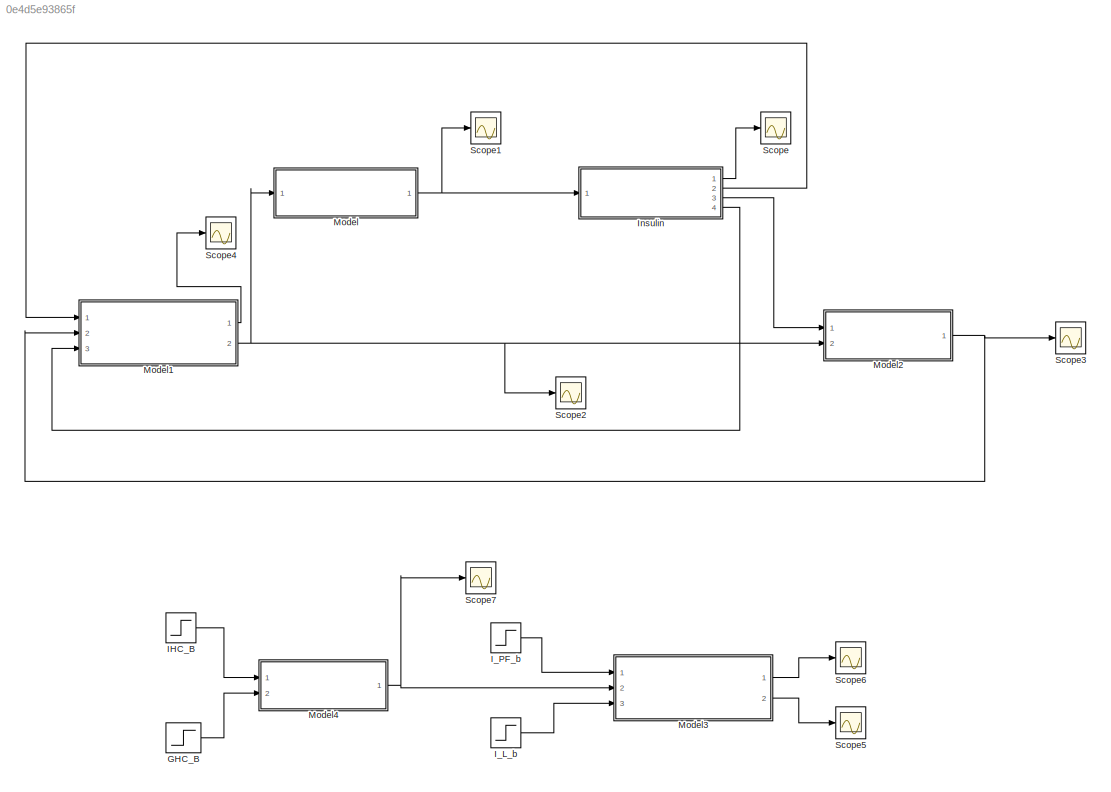
MODEL slx_0e4d5e93865f
KIND model
CONFIG AbsTol = auto
CONFIG EnableMultiTasking = off
CONFIG FixedStep = auto
CONFIG MaxStep = auto
CONFIG MinStep = auto
CONFIG RelTol = 1e-3
CONFIG SampleTimeConstraint = Unconstrained
CONFIG Solver = VariableStepAuto
CONFIG SolverName = VariableStepAuto
CONFIG StartTime = 0.0
CONFIG StopTime = 10
BLOCK [Step] GHC_B
  After = GHC_B
  Commented = on
  SampleTime = 0.1
BLOCK [Step] IHC_B
  After = IHC_B
  Commented = on
  SampleTime = 0.1
BLOCK [Step] I_L_b
  After = ILC_B
  Commented = on
  SampleTime = 0.1
BLOCK [Step] I_PF_b
  After = IPT_B
  Commented = on
  SampleTime = 0.1
BLOCK [ModelReference] Insulin
  Commented = on
  ModelNameDialog = Insulin_SubsystemReal
  ModelReferenceVersion = 1.40
  Ports = [1, 4]
BLOCK [ModelReference] Model
  Commented = on
  ModelNameDialog = pancreas
  ModelReferenceVersion = 1.16
  Ports = [1, 1]
BLOCK [ModelReference] Model1
  Commented = on
  ModelNameDialog = glucose_subsystem
  ModelReferenceVersion = 1.50
  Ports = [3, 2]
BLOCK [ModelReference] Model2
  Commented = on
  ModelNameDialog = glucagon
  ModelReferenceVersion = 1.11
  Ports = [2, 1]
BLOCK [ModelReference] Model3
  Commented = on
  ModelNameDialog = glucose_subsystem
  ModelReferenceVersion = 1.63
  Ports = [3, 2]
BLOCK [ModelReference] Model4
  Commented = on
  ModelNameDialog = glucagon
  ModelReferenceVersion = 1.11
  Ports = [2, 1]
BLOCK [Scope] Scope
  Commented = on
  Floating = off
  NumInputPorts = 1
  Ports = [1]
  ScopeSpecificationString = Simulink.scopes.TimeScopeBlockCfg('CurrentConfiguration', extmgr.ConfigurationSet(extmgr.Configuration('Core','General UI',true),extmgr.Configuration('Core','Source UI',true),extmgr.Configuration('Sources','WiredSimulink',true),extmgr.Configuration('Visuals','Time Domain',true,'SerializedDisplays',{struct('MinYLimReal','-1.00000','MaxYLimReal','1.00000','YLabelReal','','MinYLimMag','0.00000','MaxY...<+1329ch>
BLOCK [Scope] Scope1
  Commented = on
  Floating = off
  NumInputPorts = 1
  Ports = [1]
  ScopeSpecificationString = Simulink.scopes.TimeScopeBlockCfg('CurrentConfiguration', extmgr.ConfigurationSet(extmgr.Configuration('Core','General UI',true),extmgr.Configuration('Core','Source UI',true),extmgr.Configuration('Sources','WiredSimulink',true,'DataLoggingVariableName','ScopeData1'),extmgr.Configuration('Visuals','Time Domain',true,'SerializedDisplays',{struct('MinYLimReal','-0.00000000053','MaxYLimReal','0.000000...<+1431ch>
BLOCK [Scope] Scope2
  Commented = on
  Floating = off
  NumInputPorts = 1
  Ports = [1]
  ScopeSpecificationString = Simulink.scopes.TimeScopeBlockCfg('CurrentConfiguration', extmgr.ConfigurationSet(extmgr.Configuration('Core','General UI',true),extmgr.Configuration('Core','Source UI',true),extmgr.Configuration('Sources','WiredSimulink',true,'DataLoggingVariableName','ScopeData1'),extmgr.Configuration('Visuals','Time Domain',true,'SerializedDisplays',{struct('MinYLimReal','-1.00000','MaxYLimReal','1.00000','YLab...<+1396ch>
BLOCK [Scope] Scope3
  Commented = on
  Floating = off
  NumInputPorts = 1
  Ports = [1]
  ScopeSpecificationString = Simulink.scopes.TimeScopeBlockCfg('CurrentConfiguration', extmgr.ConfigurationSet(extmgr.Configuration('Core','General UI',true),extmgr.Configuration('Core','Source UI',true),extmgr.Configuration('Sources','WiredSimulink',true,'DataLoggingVariableName','ScopeData2'),extmgr.Configuration('Visuals','Time Domain',true,'SerializedDisplays',{struct('MinYLimReal','-0.99375','MaxYLimReal','8.94374','YLab...<+1395ch>
BLOCK [Scope] Scope4
  Commented = on
  Floating = off
  NumInputPorts = 1
  Ports = [1]
  ScopeSpecificationString = Simulink.scopes.TimeScopeBlockCfg('CurrentConfiguration', extmgr.ConfigurationSet(extmgr.Configuration('Core','General UI',true),extmgr.Configuration('Core','Source UI',true),extmgr.Configuration('Sources','WiredSimulink',true,'DataLoggingVariableName','ScopeData3'),extmgr.Configuration('Visuals','Time Domain',true,'SerializedDisplays',{struct('MinYLimReal','-1.00000','MaxYLimReal','1.00000','YLab...<+1396ch>
BLOCK [Scope] Scope5
  Commented = on
  Floating = off
  NumInputPorts = 1
  Ports = [1]
  ScopeSpecificationString = Simulink.scopes.TimeScopeBlockCfg('CurrentConfiguration', extmgr.ConfigurationSet(extmgr.Configuration('Core','General UI',true),extmgr.Configuration('Core','Source UI',true),extmgr.Configuration('Sources','WiredSimulink',true,'DataLoggingVariableName','ScopeData4'),extmgr.Configuration('Visuals','Time Domain',true,'SerializedDisplays',{struct('MinYLimReal','-4.90143','MaxYLimReal','0.5446','YLabe...<+1395ch>
BLOCK [Scope] Scope6
  Commented = on
  Floating = off
  NumInputPorts = 1
  Ports = [1]
  ScopeSpecificationString = Simulink.scopes.TimeScopeBlockCfg('CurrentConfiguration', extmgr.ConfigurationSet(extmgr.Configuration('Core','General UI',true),extmgr.Configuration('Core','Source UI',true),extmgr.Configuration('Sources','WiredSimulink',true,'DataLoggingVariableName','ScopeData1'),extmgr.Configuration('Visuals','Time Domain',true,'SerializedDisplays',{struct('MinYLimReal','-3.48897','MaxYLimReal','0.38766','YLab...<+1397ch>
BLOCK [Scope] Scope7
  Commented = on
  Floating = off
  NumInputPorts = 1
  Ports = [1]
  ScopeSpecificationString = Simulink.scopes.TimeScopeBlockCfg('CurrentConfiguration', extmgr.ConfigurationSet(extmgr.Configuration('Core','General UI',true),extmgr.Configuration('Core','Source UI',true),extmgr.Configuration('Sources','WiredSimulink',true,'DataLoggingVariableName','ScopeData1'),extmgr.Configuration('Visuals','Time Domain',true,'SerializedDisplays',{struct('MinYLimReal','-0.10882','MaxYLimReal','0.97941','YLab...<+1365ch>
LINE GHC_B:1 -> Model4:2
LINE IHC_B:1 -> Model4:1
LINE I_L_b:1 -> Model3:3
LINE I_PF_b:1 -> Model3:1
LINE Insulin:1 -> Scope:1
LINE Insulin:2 -> Model1:1
LINE Insulin:3 -> Model2:1
LINE Insulin:4 -> Model1:3
LINE Model1:1 -> Scope4:1
NET Model1:2 -> Model2:2, Model:1, Scope2:1
NET Model2:1 -> Model1:2, Scope3:1
LINE Model3:1 -> Scope6:1
LINE Model3:2 -> Scope5:1
NET Model4:1 -> Model3:2, Scope7:1
NET Model:1 -> Insulin:1, Scope1:1
note: NET lines group one-source signal fan-out (src -> all destinations, sorted); 1:1 wires keep LINE
